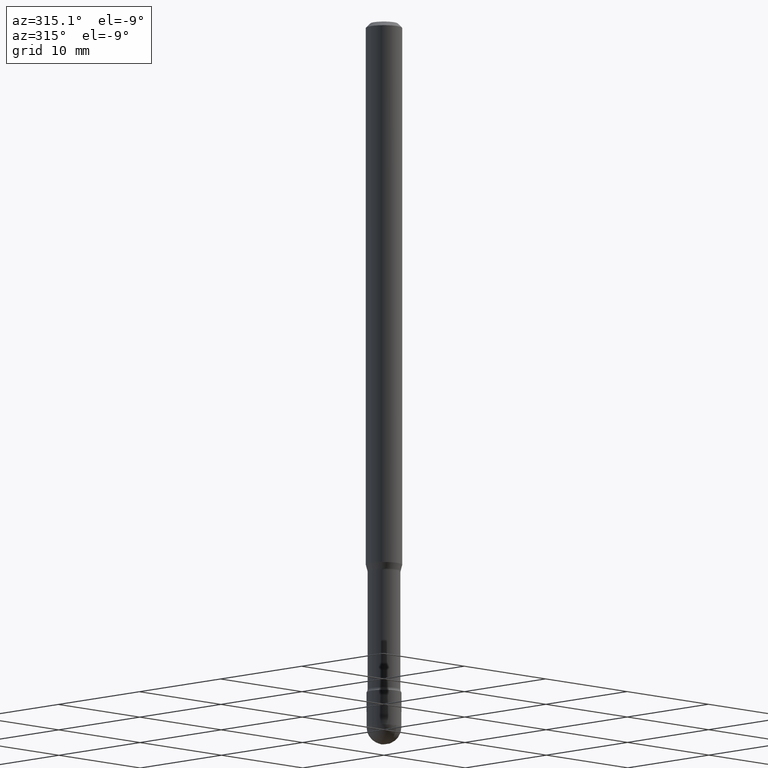
[diagram: clean part render]
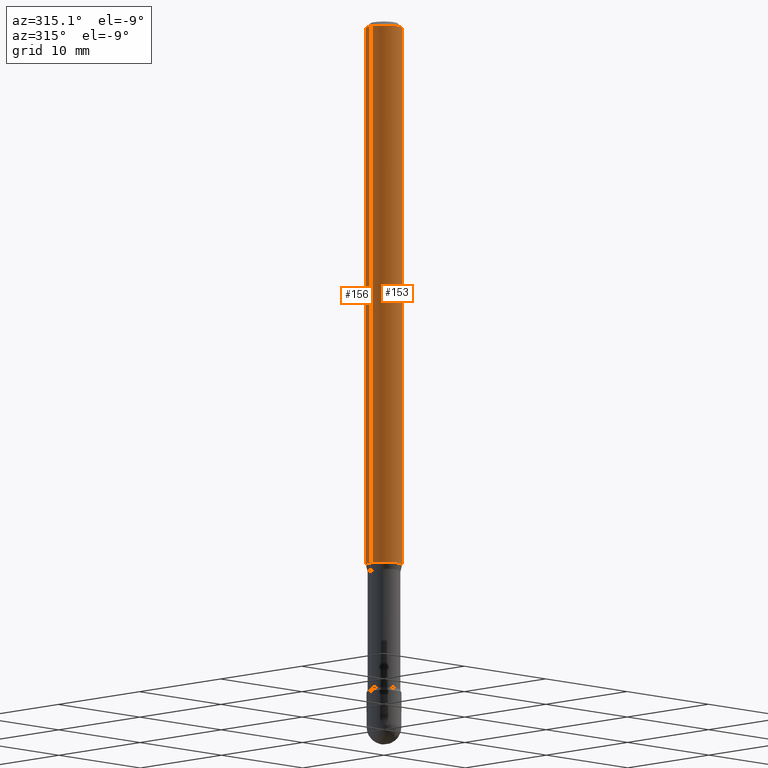
[diagram: same view with one multi-face feature highlighted, each face labeled with its STEP entity id]
A machine part, auxiliary view. The highlighted faces form ONE feature: a constant-radius fillet chain: 2 tangent blend faces with common blend radius 1.5875 mm. The faces share edges in the B-rep.
Their STEP definitions:
[1] entity #156 (Cylinder):
#13 = AXIS2_PLACEMENT_3D ( 'NONE', #223, #405, #478 ) ;
#17 = DIRECTION ( 'NONE',  ( -2.445468806185136597E-29, 3.491481338843145583E-15, 1.000000000000000000 ) ) ;
#19 = VERTEX_POINT ( 'NONE', #296 ) ;
#35 = ORIENTED_EDGE ( 'NONE', *, *, #519, .T. ) ;
#38 = ORIENTED_EDGE ( 'NONE', *, *, #353, .T. ) ;
#40 = CIRCLE ( 'NONE', #107, 0.06250000000000000000 ) ;
#41 = VECTOR ( 'NONE', #71, 39.37007874015748143 ) ;
#53 = CARTESIAN_POINT ( 'NONE',  ( -1.169113584055446105E-44, 1.669184350826100908E-30, 4.780733988912460139E-16 ) ) ;
#68 = EDGE_CURVE ( 'NONE', #19, #114, #40, .T. ) ;
#71 = DIRECTION ( 'NONE',  ( -2.445468806185136877E-29, 3.491481338843145188E-15, 1.000000000000000000 ) ) ;
#86 = EDGE_LOOP ( 'NONE', ( #35, #38, #447, #433 ) ) ;
#107 = AXIS2_PLACEMENT_3D ( 'NONE', #244, #390, #291 ) ;
#114 = VERTEX_POINT ( 'NONE', #517 ) ;
#132 = FACE_OUTER_BOUND ( 'NONE', #86, .T. ) ;
#156 = ADVANCED_FACE ( 'NONE', ( #132 ), #307, .T. ) ;
#217 = EDGE_CURVE ( 'NONE', #241, #19, #498, .T. ) ;
#218 = DIRECTION ( 'NONE',  ( 1.000000000000000000, -6.982962677686266711E-15, 4.852736867747366207E-29 ) ) ;
#223 = CARTESIAN_POINT ( 'NONE',  ( 4.590718387370413203E-29, -6.554329190725506201E-15, -1.877234490073830253 ) ) ;
#241 = VERTEX_POINT ( 'NONE', #253 ) ;
#244 = CARTESIAN_POINT ( 'NONE',  ( 3.668203209277725232E-31, -5.237222008264747365E-17, -0.01500000000000008271 ) ) ;
#253 = CARTESIAN_POINT ( 'NONE',  ( 0.06250000000000000000, -6.990764358080897871E-15, -1.877234490073830253 ) ) ;
#263 = DIRECTION ( 'NONE',  ( -2.445468806185136877E-29, 3.491481338843145188E-15, 1.000000000000000000 ) ) ;
#291 = DIRECTION ( 'NONE',  ( 1.000000000000000000, -6.982962677686266711E-15, 0.000000000000000000 ) ) ;
#296 = CARTESIAN_POINT ( 'NONE',  ( 0.06250000000000000000, -4.888073874380391431E-16, -0.01500000000000008271 ) ) ;
#307 = CYLINDRICAL_SURFACE ( 'NONE', #340, 0.06250000000000000000 ) ;
#340 = AXIS2_PLACEMENT_3D ( 'NONE', #53, #17, #218 ) ;
#353 = EDGE_CURVE ( 'NONE', #552, #114, #379, .T. ) ;
#379 = LINE ( 'NONE', #418, #41 ) ;
#390 = DIRECTION ( 'NONE',  ( -2.445468806185136597E-29, 3.491481338843145583E-15, 1.000000000000000000 ) ) ;
#405 = DIRECTION ( 'NONE',  ( -2.445468806185136597E-29, 3.491481338843145583E-15, 1.000000000000000000 ) ) ;
#408 = CARTESIAN_POINT ( 'NONE',  ( -0.06250000000000000000, -6.110239980875443585E-15, -1.877234490073830253 ) ) ;
#418 = CARTESIAN_POINT ( 'NONE',  ( -0.06250000000000000000, 4.440892098500642925E-16, 4.780733988912429571E-16 ) ) ;
#433 = ORIENTED_EDGE ( 'NONE', *, *, #217, .F. ) ;
#447 = ORIENTED_EDGE ( 'NONE', *, *, #68, .F. ) ;
#478 = DIRECTION ( 'NONE',  ( 1.000000000000000000, -6.982962677686262766E-15, 0.000000000000000000 ) ) ;
#495 = VECTOR ( 'NONE', #263, 39.37007874015748143 ) ;
#496 = CIRCLE ( 'NONE', #13, 0.06250000000000000000 ) ;
#498 = LINE ( 'NONE', #525, #495 ) ;
#517 = CARTESIAN_POINT ( 'NONE',  ( -0.06250000000000000000, -2.859261495554014616E-15, -0.01500000000000008271 ) ) ;
#519 = EDGE_CURVE ( 'NONE', #241, #552, #496, .T. ) ;
#525 = CARTESIAN_POINT ( 'NONE',  ( 0.06250000000000000000, -4.364351673553899931E-16, 4.780733988912490708E-16 ) ) ;
#552 = VERTEX_POINT ( 'NONE', #408 ) ;
[2] entity #153 (Cylinder):
#19 = VERTEX_POINT ( 'NONE', #296 ) ;
#41 = VECTOR ( 'NONE', #71, 39.37007874015748143 ) ;
#71 = DIRECTION ( 'NONE',  ( -2.445468806185136877E-29, 3.491481338843145188E-15, 1.000000000000000000 ) ) ;
#81 = DIRECTION ( 'NONE',  ( -2.445468806185136597E-29, 3.491481338843145583E-15, 1.000000000000000000 ) ) ;
#110 = CARTESIAN_POINT ( 'NONE',  ( 3.668203209277725232E-31, -5.237222008264747365E-17, -0.01500000000000008271 ) ) ;
#114 = VERTEX_POINT ( 'NONE', #517 ) ;
#119 = CIRCLE ( 'NONE', #300, 0.06250000000000000000 ) ;
#138 = ORIENTED_EDGE ( 'NONE', *, *, #362, .T. ) ;
#153 = ADVANCED_FACE ( 'NONE', ( #407 ), #440, .T. ) ;
#200 = CIRCLE ( 'NONE', #403, 0.06250000000000000000 ) ;
#217 = EDGE_CURVE ( 'NONE', #241, #19, #498, .T. ) ;
#241 = VERTEX_POINT ( 'NONE', #253 ) ;
#248 = EDGE_CURVE ( 'NONE', #114, #19, #200, .T. ) ;
#253 = CARTESIAN_POINT ( 'NONE',  ( 0.06250000000000000000, -6.990764358080897871E-15, -1.877234490073830253 ) ) ;
#263 = DIRECTION ( 'NONE',  ( -2.445468806185136877E-29, 3.491481338843145188E-15, 1.000000000000000000 ) ) ;
#296 = CARTESIAN_POINT ( 'NONE',  ( 0.06250000000000000000, -4.888073874380391431E-16, -0.01500000000000008271 ) ) ;
#300 = AXIS2_PLACEMENT_3D ( 'NONE', #304, #81, #563 ) ;
#304 = CARTESIAN_POINT ( 'NONE',  ( 4.590718387370413203E-29, -6.554329190725506201E-15, -1.877234490073830253 ) ) ;
#325 = ORIENTED_EDGE ( 'NONE', *, *, #217, .T. ) ;
#350 = CARTESIAN_POINT ( 'NONE',  ( -1.169113584055446105E-44, 1.669184350826100908E-30, 4.780733988912460139E-16 ) ) ;
#353 = EDGE_CURVE ( 'NONE', #552, #114, #379, .T. ) ;
#362 = EDGE_CURVE ( 'NONE', #552, #241, #119, .T. ) ;
#379 = LINE ( 'NONE', #418, #41 ) ;
#403 = AXIS2_PLACEMENT_3D ( 'NONE', #110, #550, #471 ) ;
#407 = FACE_OUTER_BOUND ( 'NONE', #507, .T. ) ;
#408 = CARTESIAN_POINT ( 'NONE',  ( -0.06250000000000000000, -6.110239980875443585E-15, -1.877234490073830253 ) ) ;
#418 = CARTESIAN_POINT ( 'NONE',  ( -0.06250000000000000000, 4.440892098500642925E-16, 4.780733988912429571E-16 ) ) ;
#440 = CYLINDRICAL_SURFACE ( 'NONE', #484, 0.06250000000000000000 ) ;
#457 = ORIENTED_EDGE ( 'NONE', *, *, #248, .F. ) ;
#471 = DIRECTION ( 'NONE',  ( 1.000000000000000000, -6.982962677686266711E-15, 0.000000000000000000 ) ) ;
#484 = AXIS2_PLACEMENT_3D ( 'NONE', #350, #530, #538 ) ;
#495 = VECTOR ( 'NONE', #263, 39.37007874015748143 ) ;
#497 = ORIENTED_EDGE ( 'NONE', *, *, #353, .F. ) ;
#498 = LINE ( 'NONE', #525, #495 ) ;
#507 = EDGE_LOOP ( 'NONE', ( #497, #138, #325, #457 ) ) ;
#517 = CARTESIAN_POINT ( 'NONE',  ( -0.06250000000000000000, -2.859261495554014616E-15, -0.01500000000000008271 ) ) ;
#525 = CARTESIAN_POINT ( 'NONE',  ( 0.06250000000000000000, -4.364351673553899931E-16, 4.780733988912490708E-16 ) ) ;
#530 = DIRECTION ( 'NONE',  ( -2.445468806185136597E-29, 3.491481338843145583E-15, 1.000000000000000000 ) ) ;
#538 = DIRECTION ( 'NONE',  ( 1.000000000000000000, -6.982962677686266711E-15, 4.852736867747366207E-29 ) ) ;
#550 = DIRECTION ( 'NONE',  ( -2.445468806185136597E-29, 3.491481338843145583E-15, 1.000000000000000000 ) ) ;
#552 = VERTEX_POINT ( 'NONE', #408 ) ;
#563 = DIRECTION ( 'NONE',  ( 1.000000000000000000, -6.982962677686262766E-15, 0.000000000000000000 ) ) ;